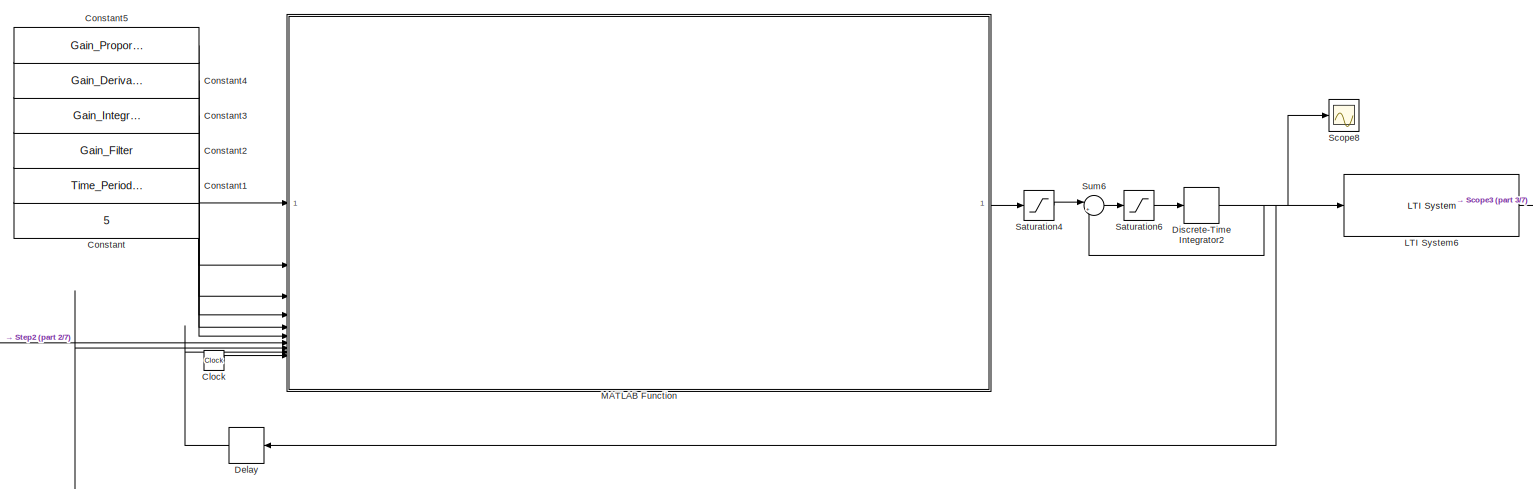
[diagram: root canvas - part 1/7, top right region]
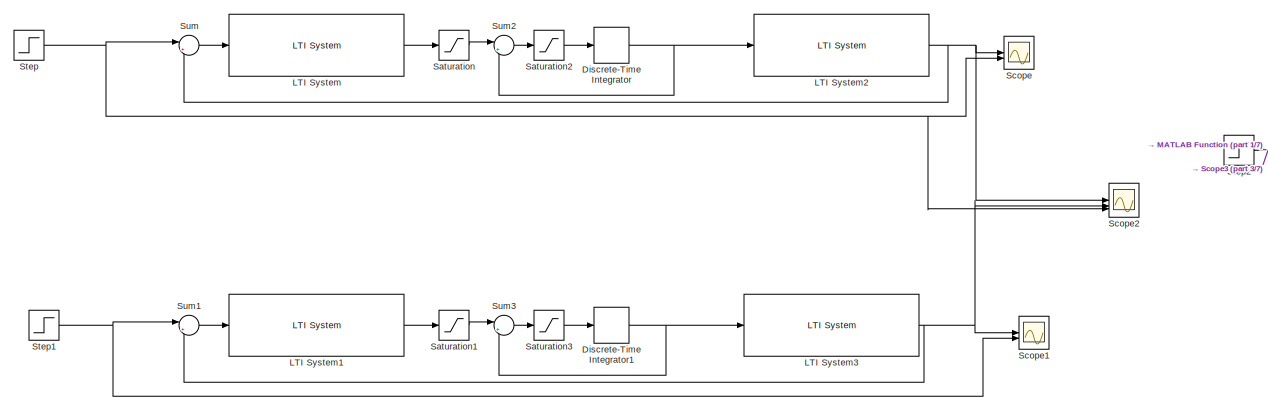
[diagram: root canvas - part 2/7, top center region]
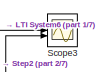
[diagram: root canvas - part 3/7, top right region]
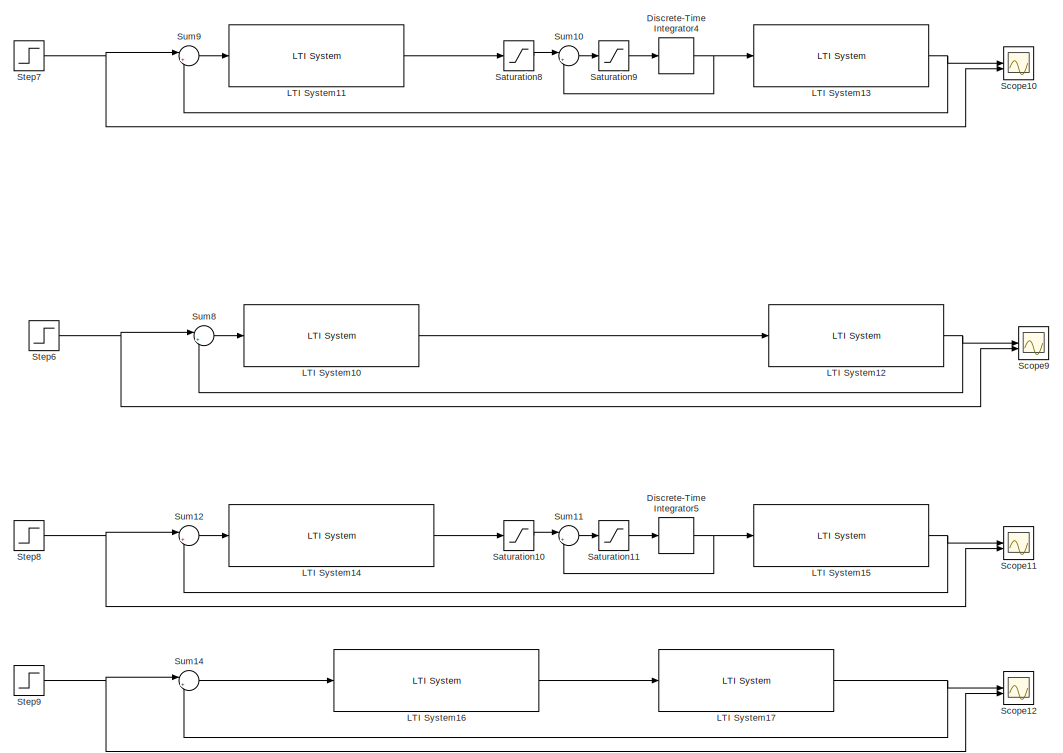
[diagram: root canvas - part 4/7, middle left region]
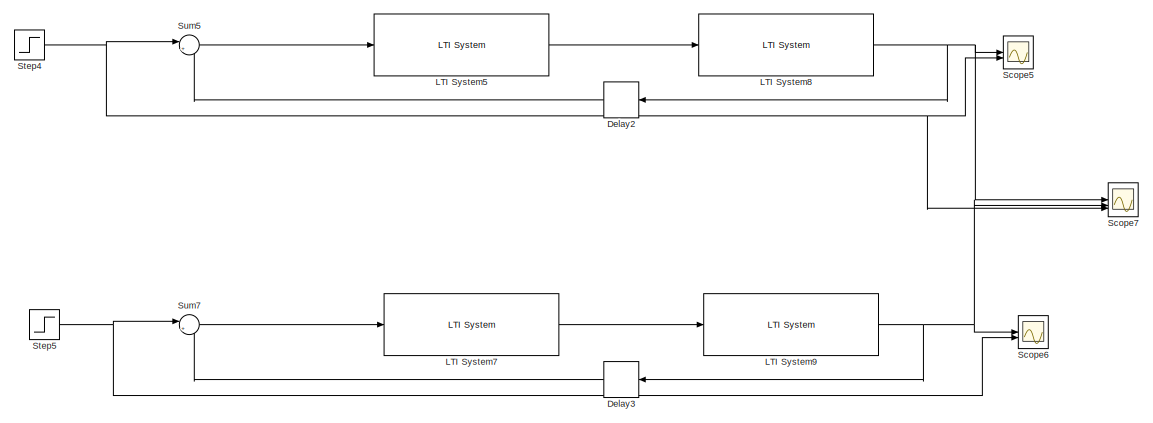
[diagram: root canvas - part 5/7, bottom center region]
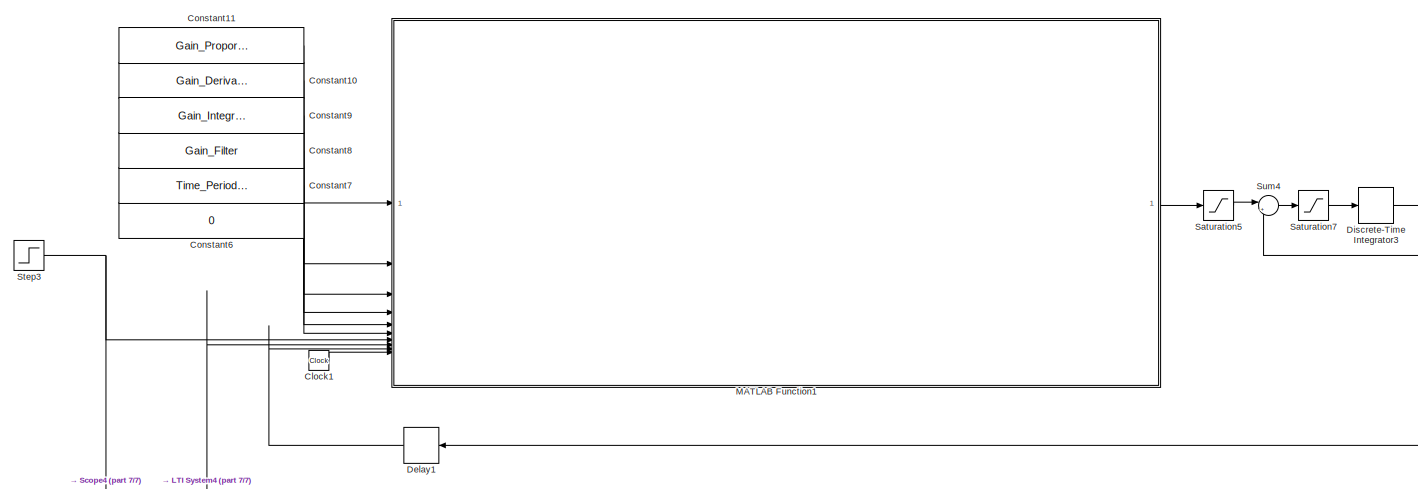
[diagram: root canvas - part 6/7, bottom right region]
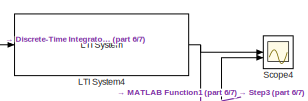
[diagram: root canvas - part 7/7, bottom right region]
MODEL slx_6a877080311b
KIND model
CONFIG AbsTol = auto
CONFIG EnableMultiTasking = off
CONFIG FixedStep = auto
CONFIG MaxStep = auto
CONFIG MinStep = auto
CONFIG RelTol = 1e-3
CONFIG SampleTimeConstraint = Unconstrained
CONFIG SolverName = VariableStepAuto
CONFIG StartTime = 0.0
CONFIG StopTime = 100
BLOCK [Clock] Clock
BLOCK [Clock] Clock1
BLOCK [Constant] Constant
  Value = 5
BLOCK [Constant] Constant1
  Value = Time_Period_Sampling
BLOCK [Constant] Constant10
  Value = Gain_Derivative
BLOCK [Constant] Constant11
  Value = Gain_Proportional
BLOCK [Constant] Constant2
  Value = Gain_Filter
BLOCK [Constant] Constant3
  Value = Gain_Integral
BLOCK [Constant] Constant4
  Value = Gain_Derivative
BLOCK [Constant] Constant5
  Value = Gain_Proportional
BLOCK [Constant] Constant6
  Value = 0
BLOCK [Constant] Constant7
  Value = Time_Period_Sampling
BLOCK [Constant] Constant8
  Value = Gain_Filter
BLOCK [Constant] Constant9
  Value = Gain_Integral
BLOCK [Delay] Delay
  DelayLength = 1
  InputPortMap = u0
  InputProcessing = Columns as channels (frame based)
  SampleTime = Time_Period_Sampling
BLOCK [Delay] Delay1
  DelayLength = 1
  InputPortMap = u0
  InputProcessing = Columns as channels (frame based)
  SampleTime = Time_Period_Sampling
BLOCK [Delay] Delay2
  DelayLength = 1
  InputPortMap = u0
  InputProcessing = Columns as channels (frame based)
  SampleTime = Time_Period_Sampling
BLOCK [Delay] Delay3
  DelayLength = 1
  InputPortMap = u0
  InputProcessing = Columns as channels (frame based)
  SampleTime = Time_Period_Sampling
BLOCK [DiscreteIntegrator] Discrete-Time Integrator
  ICPrevOutput = DiscIntNeverNeededParam
  ICPrevScaledInput = DiscIntNeverNeededParam
  InitialConditionSetting = Auto
  SampleTime = Time_Period_Sampling
BLOCK [DiscreteIntegrator] Discrete-Time Integrator1
  ICPrevOutput = DiscIntNeverNeededParam
  ICPrevScaledInput = DiscIntNeverNeededParam
  InitialConditionSetting = Auto
  SampleTime = Time_Period_Sampling
BLOCK [DiscreteIntegrator] Discrete-Time Integrator2
  ICPrevOutput = DiscIntNeverNeededParam
  ICPrevScaledInput = DiscIntNeverNeededParam
  InitialConditionSetting = Auto
  SampleTime = Time_Period_Sampling
BLOCK [DiscreteIntegrator] Discrete-Time Integrator3
  ICPrevOutput = DiscIntNeverNeededParam
  ICPrevScaledInput = DiscIntNeverNeededParam
  InitialConditionSetting = Auto
  SampleTime = Time_Period_Sampling
BLOCK [DiscreteIntegrator] Discrete-Time Integrator4
  ICPrevOutput = DiscIntNeverNeededParam
  ICPrevScaledInput = DiscIntNeverNeededParam
  InitialConditionSetting = Auto
  SampleTime = Time_Period_Sampling
BLOCK [DiscreteIntegrator] Discrete-Time Integrator5
  ICPrevOutput = DiscIntNeverNeededParam
  ICPrevScaledInput = DiscIntNeverNeededParam
  InitialConditionSetting = Auto
  SampleTime = Time_Period_Sampling
BLOCK [Reference] LTI System  REF=cstblocks/LTI System
  SourceBlock = cstblocks/LTI System
  SourceType = LTI Block
BLOCK [Reference] LTI System1  REF=cstblocks/LTI System
  SourceBlock = cstblocks/LTI System
  SourceType = LTI Block
BLOCK [Reference] LTI System10  REF=cstblocks/LTI System
  SourceBlock = cstblocks/LTI System
  SourceType = LTI Block
BLOCK [Reference] LTI System11  REF=cstblocks/LTI System
  SourceBlock = cstblocks/LTI System
  SourceType = LTI Block
BLOCK [Reference] LTI System12  REF=cstblocks/LTI System
  SourceBlock = cstblocks/LTI System
  SourceType = LTI Block
BLOCK [Reference] LTI System13  REF=cstblocks/LTI System
  SourceBlock = cstblocks/LTI System
  SourceType = LTI Block
BLOCK [Reference] LTI System14  REF=cstblocks/LTI System
  SourceBlock = cstblocks/LTI System
  SourceType = LTI Block
BLOCK [Reference] LTI System15  REF=cstblocks/LTI System
  SourceBlock = cstblocks/LTI System
  SourceType = LTI Block
BLOCK [Reference] LTI System16  REF=cstblocks/LTI System
  SourceBlock = cstblocks/LTI System
  SourceType = LTI Block
BLOCK [Reference] LTI System17  REF=cstblocks/LTI System
  SourceBlock = cstblocks/LTI System
  SourceType = LTI Block
BLOCK [Reference] LTI System2  REF=cstblocks/LTI System
  SourceBlock = cstblocks/LTI System
  SourceType = LTI Block
BLOCK [Reference] LTI System3  REF=cstblocks/LTI System
  SourceBlock = cstblocks/LTI System
  SourceType = LTI Block
BLOCK [Reference] LTI System4  REF=cstblocks/LTI System
  SourceBlock = cstblocks/LTI System
  SourceType = LTI Block
BLOCK [Reference] LTI System5  REF=cstblocks/LTI System
  SourceBlock = cstblocks/LTI System
  SourceType = LTI Block
BLOCK [Reference] LTI System6  REF=cstblocks/LTI System
  SourceBlock = cstblocks/LTI System
  SourceType = LTI Block
BLOCK [Reference] LTI System7  REF=cstblocks/LTI System
  SourceBlock = cstblocks/LTI System
  SourceType = LTI Block
BLOCK [Reference] LTI System8  REF=cstblocks/LTI System
  SourceBlock = cstblocks/LTI System
  SourceType = LTI Block
BLOCK [Reference] LTI System9  REF=cstblocks/LTI System
  SourceBlock = cstblocks/LTI System
  SourceType = LTI Block
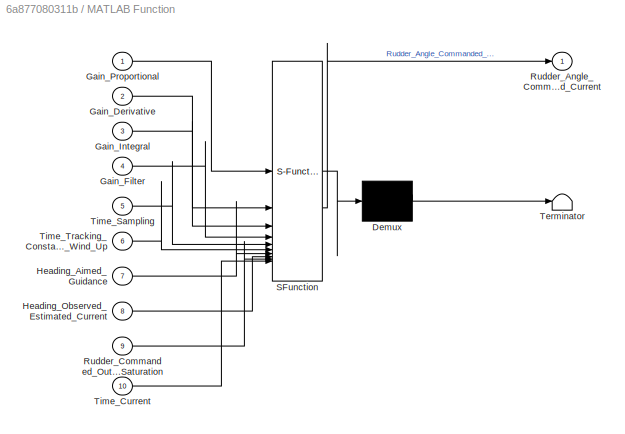
BLOCK [SubSystem] MATLAB Function
  ErrorFcn = Stateflow.Translate.translate
  PermitHierarchicalResolution = ExplicitOnly
  SFBlockType = MATLAB Function
  SystemSampleTime = Time_Period_Sampling
  TreatAsAtomicUnit = on
BLOCK [Demux] MATLAB Function/ Demux 
  Outputs = 1
BLOCK [S-Function] MATLAB Function/ SFunction 
  EnableBusSupport = on
  FunctionName = sf_sfun
  PortCounts = [10 2]
  SFcnIsStateOwnerBlock = off
  SFunctionDeploymentMode = off
  Tag = Stateflow S-Function 2
BLOCK [Terminator] MATLAB Function/ Terminator 
BLOCK [Inport] MATLAB Function/Gain_Derivative
  Port = 2
BLOCK [Inport] MATLAB Function/Gain_Filter
  Port = 4
BLOCK [Inport] MATLAB Function/Gain_Integral
  Port = 3
BLOCK [Inport] MATLAB Function/Gain_Proportional
BLOCK [Inport] MATLAB Function/Heading_Aimed_Guidance
  Port = 7
BLOCK [Inport] MATLAB Function/Heading_Observed_Estimated_Current
  Port = 8
BLOCK [Outport] MATLAB Function/Rudder_Angle_Commanded_Current
BLOCK [Inport] MATLAB Function/Rudder_Commanded_Output_Saturation
  Port = 9
BLOCK [Inport] MATLAB Function/Time_Current
  Port = 10
BLOCK [Inport] MATLAB Function/Time_Sampling
  Port = 5
BLOCK [Inport] MATLAB Function/Time_Tracking_Constant_Anti_Wind_Up
  Port = 6
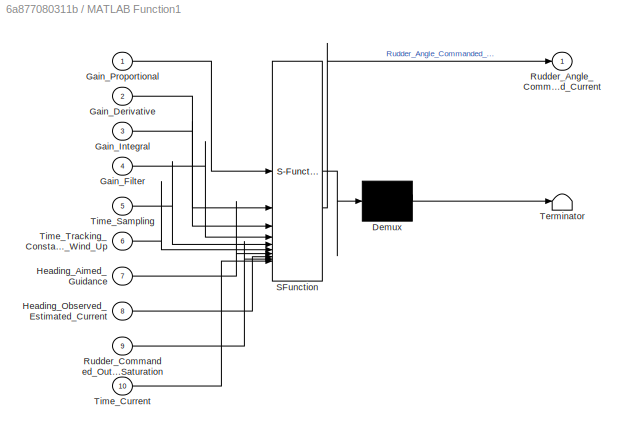
BLOCK [SubSystem] MATLAB Function1
  ErrorFcn = Stateflow.Translate.translate
  PermitHierarchicalResolution = ExplicitOnly
  SFBlockType = MATLAB Function
  SystemSampleTime = Time_Period_Sampling
  TreatAsAtomicUnit = on
BLOCK [Demux] MATLAB Function1/ Demux 
  Outputs = 1
BLOCK [S-Function] MATLAB Function1/ SFunction 
  EnableBusSupport = on
  FunctionName = sf_sfun
  PortCounts = [10 2]
  SFcnIsStateOwnerBlock = off
  SFunctionDeploymentMode = off
  Tag = Stateflow S-Function 1
BLOCK [Terminator] MATLAB Function1/ Terminator 
BLOCK [Inport] MATLAB Function1/Gain_Derivative
  Port = 2
BLOCK [Inport] MATLAB Function1/Gain_Filter
  Port = 4
BLOCK [Inport] MATLAB Function1/Gain_Integral
  Port = 3
BLOCK [Inport] MATLAB Function1/Gain_Proportional
BLOCK [Inport] MATLAB Function1/Heading_Aimed_Guidance
  Port = 7
BLOCK [Inport] MATLAB Function1/Heading_Observed_Estimated_Current
  Port = 8
BLOCK [Outport] MATLAB Function1/Rudder_Angle_Commanded_Current
BLOCK [Inport] MATLAB Function1/Rudder_Commanded_Output_Saturation
  Port = 9
BLOCK [Inport] MATLAB Function1/Time_Current
  Port = 10
BLOCK [Inport] MATLAB Function1/Time_Sampling
  Port = 5
BLOCK [Inport] MATLAB Function1/Time_Tracking_Constant_Anti_Wind_Up
  Port = 6
BLOCK [Saturate] Saturation
  LowerLimit = -35*(pi/180)
  UpperLimit = 35*(pi/180)
BLOCK [Saturate] Saturation1
  LowerLimit = -35*(pi/180)
  UpperLimit = 35*(pi/180)
BLOCK [Saturate] Saturation10
  LowerLimit = -35*(pi/180)
  UpperLimit = 35*(pi/180)
BLOCK [Saturate] Saturation11
  LowerLimit = -5*(pi/180)
  UpperLimit = 5*(pi/180)
BLOCK [Saturate] Saturation2
  LowerLimit = -20*(pi/180)
  UpperLimit = 20*(pi/180)
BLOCK [Saturate] Saturation3
  LowerLimit = -20*(pi/180)
  UpperLimit = 20*(pi/180)
BLOCK [Saturate] Saturation4
  LowerLimit = -35*(pi/180)
  UpperLimit = 35*(pi/180)
BLOCK [Saturate] Saturation5
  LowerLimit = -25*(pi/180)
  UpperLimit = 25*(pi/180)
BLOCK [Saturate] Saturation6
  LowerLimit = -5*(pi/180)
  UpperLimit = 5*(pi/180)
BLOCK [Saturate] Saturation7
  LowerLimit = -3*(pi/180)
  UpperLimit = 3*(pi/180)
BLOCK [Saturate] Saturation8
  LowerLimit = -35*(pi/180)
  UpperLimit = 35*(pi/180)
BLOCK [Saturate] Saturation9
  LowerLimit = -5*(pi/180)
  UpperLimit = 5*(pi/180)
BLOCK [Scope] Scope
  Floating = off
  NumInputPorts = 2
  ScopeSpecificationString = Simulink.scopes.TimeScopeBlockCfg('CurrentConfiguration', extmgr.ConfigurationSet(extmgr.Configuration('Core','General UI',true),extmgr.Configuration('Core','Source UI',true),extmgr.Configuration('Sources','WiredSimulink',true),extmgr.Configuration('Visuals','Time Domain',true,'SerializedDisplays',{struct('MinYLimReal','-0.08093','MaxYLimReal','0.7284','YLabelReal','','MinYLimMag','0.00000','MaxYL...<+1452ch>
BLOCK [Scope] Scope1
  Floating = off
  NumInputPorts = 2
  ScopeSpecificationString = Simulink.scopes.TimeScopeBlockCfg('CurrentConfiguration', extmgr.ConfigurationSet(extmgr.Configuration('Core','General UI',true),extmgr.Configuration('Core','Source UI',true),extmgr.Configuration('Sources','WiredSimulink',true,'DataLoggingVariableName','ScopeData1'),extmgr.Configuration('Visuals','Time Domain',true,'SerializedDisplays',{struct('MinYLimReal','-446693.90288','MaxYLimReal','4020245.1...<+1538ch>
BLOCK [Scope] Scope10
  Floating = off
  NumInputPorts = 2
  ScopeSpecificationString = Simulink.scopes.TimeScopeBlockCfg('CurrentConfiguration', extmgr.ConfigurationSet(extmgr.Configuration('Core','General UI',true),extmgr.Configuration('Core','Source UI',true),extmgr.Configuration('Sources','WiredSimulink',true,'DataLoggingVariableName','ScopeData2'),extmgr.Configuration('Visuals','Time Domain',true,'SerializedDisplays',{struct('MinYLimReal','-0.05454','MaxYLimReal','0.49087','YLab...<+1497ch>
BLOCK [Scope] Scope11
  Floating = off
  NumInputPorts = 2
  ScopeSpecificationString = Simulink.scopes.TimeScopeBlockCfg('CurrentConfiguration', extmgr.ConfigurationSet(extmgr.Configuration('Core','General UI',true),extmgr.Configuration('Core','Source UI',true),extmgr.Configuration('Sources','WiredSimulink',true,'DataLoggingVariableName','ScopeData1'),extmgr.Configuration('Visuals','Time Domain',true,'SerializedDisplays',{struct('MinYLimReal','-3924756.68007','MaxYLimReal','35322810...<+1547ch>
BLOCK [Scope] Scope12
  Floating = off
  NumInputPorts = 2
  ScopeSpecificationString = Simulink.scopes.TimeScopeBlockCfg('CurrentConfiguration', extmgr.ConfigurationSet(extmgr.Configuration('Core','General UI',true),extmgr.Configuration('Core','Source UI',true),extmgr.Configuration('Sources','WiredSimulink',true,'DataLoggingVariableName','ScopeData2'),extmgr.Configuration('Visuals','Time Domain',true,'SerializedDisplays',{struct('MinYLimReal','-0.05935','MaxYLimReal','0.53414','YLab...<+1516ch>
BLOCK [Scope] Scope2
  Floating = off
  NumInputPorts = 3
  ScopeSpecificationString = Simulink.scopes.TimeScopeBlockCfg('CurrentConfiguration', extmgr.ConfigurationSet(extmgr.Configuration('Core','General UI',true),extmgr.Configuration('Core','Source UI',true),extmgr.Configuration('Sources','WiredSimulink',true,'DataLoggingVariableName','ScopeData2'),extmgr.Configuration('Visuals','Time Domain',true,'SerializedDisplays',{struct('MinYLimReal','-446693.90288','MaxYLimReal','4020245.1...<+1551ch>
BLOCK [Scope] Scope3
  Floating = off
  NumInputPorts = 2
  ScopeSpecificationString = Simulink.scopes.TimeScopeBlockCfg('CurrentConfiguration', extmgr.ConfigurationSet(extmgr.Configuration('Core','General UI',true),extmgr.Configuration('Core','Source UI',true),extmgr.Configuration('Sources','WiredSimulink',true,'DataLoggingVariableName','ScopeData1'),extmgr.Configuration('Visuals','Time Domain',true,'SerializedDisplays',{struct('MinYLimReal','-0.27418','MaxYLimReal','0.70792','YLab...<+1496ch>
BLOCK [Scope] Scope4
  Floating = off
  NumInputPorts = 2
  ScopeSpecificationString = Simulink.scopes.TimeScopeBlockCfg('CurrentConfiguration', extmgr.ConfigurationSet(extmgr.Configuration('Core','General UI',true),extmgr.Configuration('Core','Source UI',true),extmgr.Configuration('Sources','WiredSimulink',true,'DataLoggingVariableName','ScopeData2'),extmgr.Configuration('Visuals','Time Domain',true,'SerializedDisplays',{struct('MinYLimReal','-0.06981','MaxYLimReal','0.62828','YLab...<+1496ch>
BLOCK [Scope] Scope5
  Floating = off
  NumInputPorts = 2
  ScopeSpecificationString = Simulink.scopes.TimeScopeBlockCfg('CurrentConfiguration', extmgr.ConfigurationSet(extmgr.Configuration('Core','General UI',true),extmgr.Configuration('Core','Source UI',true),extmgr.Configuration('Sources','WiredSimulink',true,'DataLoggingVariableName','ScopeData3'),extmgr.Configuration('Visuals','Time Domain',true,'SerializedDisplays',{struct('MinYLimReal','-0.06799','MaxYLimReal','0.61191','YLab...<+1496ch>
BLOCK [Scope] Scope6
  Floating = off
  NumInputPorts = 2
  ScopeSpecificationString = Simulink.scopes.TimeScopeBlockCfg('CurrentConfiguration', extmgr.ConfigurationSet(extmgr.Configuration('Core','General UI',true),extmgr.Configuration('Core','Source UI',true),extmgr.Configuration('Sources','WiredSimulink',true,'DataLoggingVariableName','ScopeData4'),extmgr.Configuration('Visuals','Time Domain',true,'SerializedDisplays',{struct('MinYLimReal','-0.06837','MaxYLimReal','0.61529','YLab...<+1515ch>
BLOCK [Scope] Scope7
  Floating = off
  NumInputPorts = 3
  ScopeSpecificationString = Simulink.scopes.TimeScopeBlockCfg('CurrentConfiguration', extmgr.ConfigurationSet(extmgr.Configuration('Core','General UI',true),extmgr.Configuration('Core','Source UI',true),extmgr.Configuration('Sources','WiredSimulink',true,'DataLoggingVariableName','ScopeData5'),extmgr.Configuration('Visuals','Time Domain',true,'SerializedDisplays',{struct('MinYLimReal','-0.06799','MaxYLimReal','0.61191','YLab...<+1510ch>
BLOCK [Scope] Scope8
  Floating = off
  NumInputPorts = 1
  ScopeSpecificationString = Simulink.scopes.TimeScopeBlockCfg('CurrentConfiguration', extmgr.ConfigurationSet(extmgr.Configuration('Core','General UI',true),extmgr.Configuration('Core','Source UI',true),extmgr.Configuration('Sources','WiredSimulink',true,'DataLoggingVariableName','ScopeData1'),extmgr.Configuration('Visuals','Time Domain',true,'SerializedDisplays',{struct('MinYLimReal','-0.27164','MaxYLimReal','0.18283','YLab...<+1473ch>
BLOCK [Scope] Scope9
  Floating = off
  NumInputPorts = 2
  ScopeSpecificationString = Simulink.scopes.TimeScopeBlockCfg('CurrentConfiguration', extmgr.ConfigurationSet(extmgr.Configuration('Core','General UI',true),extmgr.Configuration('Core','Source UI',true),extmgr.Configuration('Sources','WiredSimulink',true,'DataLoggingVariableName','ScopeData3'),extmgr.Configuration('Visuals','Time Domain',true,'SerializedDisplays',{struct('MinYLimReal','-70526.29099','MaxYLimReal','634725.924...<+1550ch>
BLOCK [Step] Step
  After = 25*(pi/180)
  SampleTime = 0
BLOCK [Step] Step1
  After = 25*(pi/180)
  SampleTime = 0
BLOCK [Step] Step2
  After = 25*(pi/180)
  SampleTime = 0
BLOCK [Step] Step3
  After = 25*(pi/180)
  SampleTime = 0
BLOCK [Step] Step4
  After = 25*(pi/180)
  SampleTime = 0
BLOCK [Step] Step5
  After = 25*(pi/180)
  SampleTime = 0
BLOCK [Step] Step6
  After = 25*(pi/180)
  SampleTime = 0
BLOCK [Step] Step7
  After = 25*(pi/180)
  SampleTime = 0
BLOCK [Step] Step8
  After = 25*(pi/180)
  SampleTime = 0
BLOCK [Step] Step9
  After = 25*(pi/180)
  SampleTime = 0
BLOCK [Sum] Sum
  Inputs = |+-
BLOCK [Sum] Sum1
  Inputs = |+-
BLOCK [Sum] Sum10
  Inputs = |+-
BLOCK [Sum] Sum11
  Inputs = |+-
BLOCK [Sum] Sum12
  Inputs = |+-
BLOCK [Sum] Sum14
  Inputs = |+-
BLOCK [Sum] Sum2
  Inputs = |+-
BLOCK [Sum] Sum3
  Inputs = |+-
BLOCK [Sum] Sum4
  Inputs = |+-
BLOCK [Sum] Sum5
  Inputs = |+-
BLOCK [Sum] Sum6
  Inputs = |+-
BLOCK [Sum] Sum7
  Inputs = |+-
BLOCK [Sum] Sum8
  Inputs = |+-
BLOCK [Sum] Sum9
  Inputs = |+-
LINE Clock1:1 -> MATLAB Function1:10
LINE Clock:1 -> MATLAB Function:10
LINE Constant10:1 -> MATLAB Function1:2
LINE Constant11:1 -> MATLAB Function1:1
LINE Constant1:1 -> MATLAB Function:5
LINE Constant2:1 -> MATLAB Function:4
LINE Constant3:1 -> MATLAB Function:3
LINE Constant4:1 -> MATLAB Function:2
LINE Constant5:1 -> MATLAB Function:1
LINE Constant6:1 -> MATLAB Function1:6
LINE Constant7:1 -> MATLAB Function1:5
LINE Constant8:1 -> MATLAB Function1:4
LINE Constant9:1 -> MATLAB Function1:3
LINE Constant:1 -> MATLAB Function:6
LINE Delay1:1 -> MATLAB Function1:9
LINE Delay2:1 -> Sum5:2
LINE Delay3:1 -> Sum7:2
LINE Delay:1 -> MATLAB Function:9
NET Discrete-Time Integrator1:1 -> LTI System3:1, Sum3:2
NET Discrete-Time Integrator2:1 -> Delay:1, LTI System6:1, Scope8:1, Sum6:2
NET Discrete-Time Integrator3:1 -> Delay1:1, LTI System4:1, Sum4:2
NET Discrete-Time Integrator4:1 -> LTI System13:1, Sum10:2
NET Discrete-Time Integrator5:1 -> LTI System15:1, Sum11:2
NET Discrete-Time Integrator:1 -> LTI System2:1, Sum2:2
LINE LTI System10:1 -> LTI System12:1
LINE LTI System11:1 -> Saturation8:1
NET LTI System12:1 -> Scope9:1, Sum8:2
NET LTI System13:1 -> Scope10:1, Sum9:2
LINE LTI System14:1 -> Saturation10:1
NET LTI System15:1 -> Scope11:1, Sum12:2
LINE LTI System16:1 -> LTI System17:1
NET LTI System17:1 -> Scope12:1, Sum14:2
LINE LTI System1:1 -> Saturation1:1
NET LTI System2:1 -> Scope2:1, Scope:1, Sum:2
NET LTI System3:1 -> Scope1:1, Scope2:2, Sum1:2
NET LTI System4:1 -> MATLAB Function1:8, Scope4:1
LINE LTI System5:1 -> LTI System8:1
NET LTI System6:1 -> MATLAB Function:8, Scope3:1
LINE LTI System7:1 -> LTI System9:1
NET LTI System8:1 -> Delay2:1, Scope5:1, Scope7:1
NET LTI System9:1 -> Delay3:1, Scope6:1, Scope7:2
LINE LTI System:1 -> Saturation:1
LINE MATLAB Function1:1 -> Saturation5:1
LINE MATLAB Function:1 -> Saturation4:1
LINE Saturation10:1 -> Sum11:1
LINE Saturation11:1 -> Discrete-Time Integrator5:1
LINE Saturation1:1 -> Sum3:1
LINE Saturation2:1 -> Discrete-Time Integrator:1
LINE Saturation3:1 -> Discrete-Time Integrator1:1
LINE Saturation4:1 -> Sum6:1
LINE Saturation5:1 -> Sum4:1
LINE Saturation6:1 -> Discrete-Time Integrator2:1
LINE Saturation7:1 -> Discrete-Time Integrator3:1
LINE Saturation8:1 -> Sum10:1
LINE Saturation9:1 -> Discrete-Time Integrator4:1
LINE Saturation:1 -> Sum2:1
NET Step1:1 -> Scope1:2, Sum1:1
NET Step2:1 -> MATLAB Function:7, Scope3:2
NET Step3:1 -> MATLAB Function1:7, Scope4:2
NET Step4:1 -> Scope5:2, Scope7:3, Sum5:1
NET Step5:1 -> Scope6:2, Sum7:1
NET Step6:1 -> Scope9:2, Sum8:1
NET Step7:1 -> Scope10:2, Sum9:1
NET Step8:1 -> Scope11:2, Sum12:1
NET Step9:1 -> Scope12:2, Sum14:1
NET Step:1 -> Scope2:3, Scope:2, Sum:1
LINE Sum10:1 -> Saturation9:1
LINE Sum11:1 -> Saturation11:1
LINE Sum12:1 -> LTI System14:1
LINE Sum14:1 -> LTI System16:1
LINE Sum1:1 -> LTI System1:1
LINE Sum2:1 -> Saturation2:1
LINE Sum3:1 -> Saturation3:1
LINE Sum4:1 -> Saturation7:1
LINE Sum5:1 -> LTI System5:1
LINE Sum6:1 -> Saturation6:1
LINE Sum7:1 -> LTI System7:1
LINE Sum8:1 -> LTI System10:1
LINE Sum9:1 -> LTI System11:1
LINE Sum:1 -> LTI System:1
note: NET lines group one-source signal fan-out (src -> all destinations, sorted); 1:1 wires keep LINE
CHART MATLAB Function1 states=1 transitions=1
  STATE_LABEL 'eML_blk_kernel()'
  STATE_LABEL 'SCRIPT:\nfunction Rudder_Angle_Commanded_Current  = PIDF_Anti_Wind_Up_Incremental(Gain_Proportional,...\n                   Gain_Derivative,...\n                   Gain_Integral,...\n                   Gain_Filter,...\n                   Time_Sampling,...\n                   Time_Tracking_Constant_Anti_Wind_Up,...\n                   Heading_Aimed_Guidance,...\n                   Heading_Observed_Estimate...<+2878ch>'
CHART MATLAB Function states=1 transitions=1
  STATE_LABEL 'eML_blk_kernel()'
  STATE_LABEL 'SCRIPT:\nfunction Rudder_Angle_Commanded_Current  = PIDF_Anti_Wind_Up_Back_Calculation(Gain_Proportional,...\n                      Gain_Derivative,...\n                      Gain_Integral,...\n                      Gain_Filter,...\n                      Time_Sampling,...\n                      Time_Tracking_Constant_Anti_Wind_Up,...\n                      Heading_Aimed_Guidance,...\n                     ...<+2552ch>'
CHART  states=0 transitions=0
CHART  states=0 transitions=0
